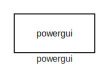
[diagram: root canvas - part 1/4, top left region]
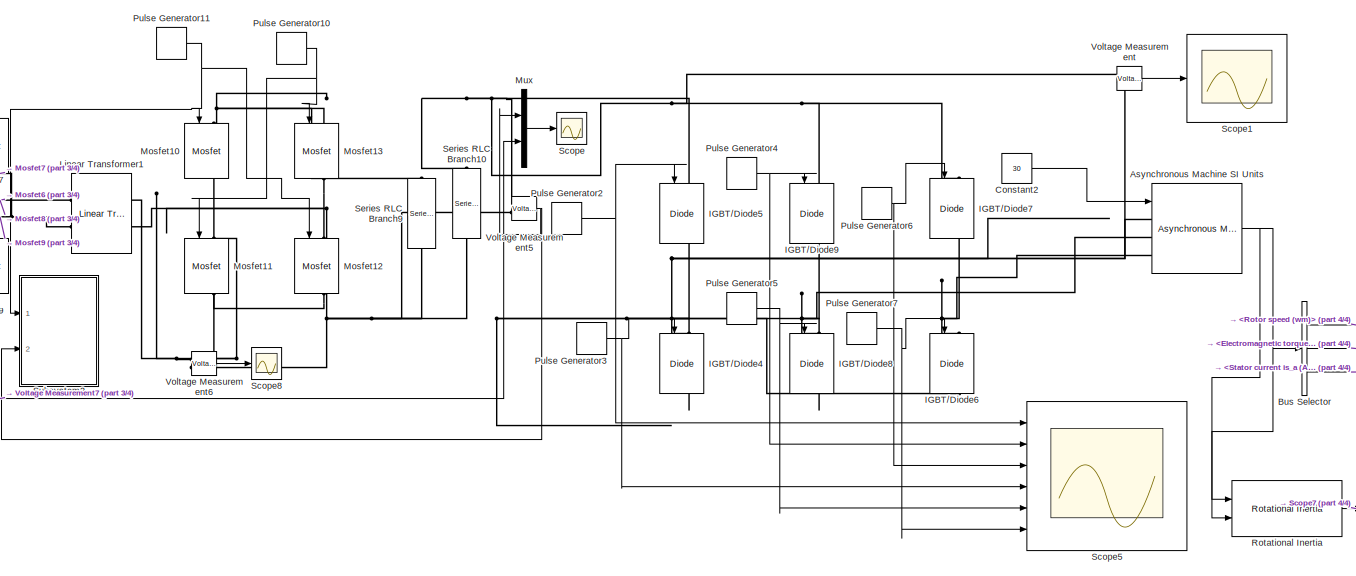
[diagram: root canvas - part 2/4, central region]
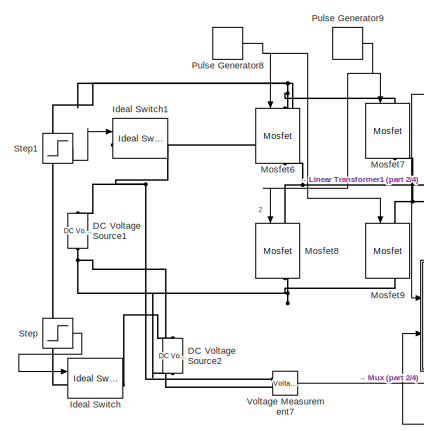
[diagram: root canvas - part 3/4, middle left region]
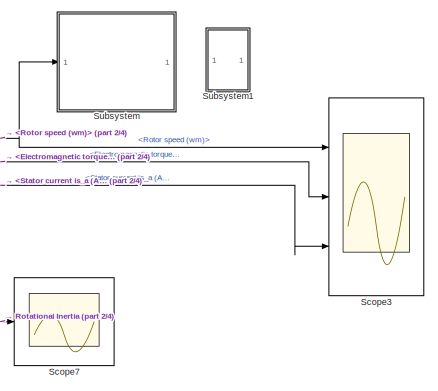
[diagram: root canvas - part 4/4, bottom right region]
MODEL slx_6dc73b4e41af
KIND model
CONFIG AbsTol = auto
CONFIG EnableMultiTasking = off
CONFIG FixedStep = auto
CONFIG MaxStep = auto
CONFIG MinStep = auto
CONFIG RelTol = 1e-3
CONFIG SampleTimeConstraint = Unconstrained
CONFIG Solver = VariableStepAuto
CONFIG SolverName = VariableStepAuto
CONFIG StartTime = 0.0
CONFIG StopTime = 10.0
BLOCK [Reference] Asynchronous Machine SI Units  REF=powerlib/Machines/Asynchronous Machine
SI Units
  Ports = [1, 1, 0, 0, 0, 3]
  SourceBlock = powerlib/Machines/Asynchronous Machine\nSI Units
  SourceProductBaseCode = PS
  SourceProductName = Simscape Electrical
  SourceType = Asynchronous Machine
BLOCK [BusSelector] Bus Selector
  OutputAsBus = off
  OutputSignals = Mechanical.Rotor speed (wm),Mechanical.Electromagnetic torque Te (N*m),Stator measurements.Stator current is_a (A)
  Ports = [1, 3]
BLOCK [Constant] Constant2
  Value = 30
BLOCK [Reference] DC Voltage Source1  REF=powerlib/Electrical
Sources/DC Voltage Source
  Ports = [0, 0, 0, 0, 0, 1, 1]
  SourceBlock = powerlib/Electrical\nSources/DC Voltage Source
  SourceProductBaseCode = PS
  SourceProductName = Simscape Electrical
  SourceType = DC Voltage Source
BLOCK [Reference] DC Voltage Source2  REF=powerlib/Electrical
Sources/DC Voltage Source
  Ports = [0, 0, 0, 0, 0, 1, 1]
  SourceBlock = powerlib/Electrical\nSources/DC Voltage Source
  SourceProductBaseCode = PS
  SourceProductName = Simscape Electrical
  SourceType = DC Voltage Source
BLOCK [Reference] IGBT//Diode4  REF=powerlib/Power
Electronics/IGBT//Diode
  Ports = [1, 1, 0, 0, 0, 1, 1]
  SourceBlock = powerlib/Power\nElectronics/IGBT//Diode
  SourceProductBaseCode = PS
  SourceProductName = Simscape Electrical
  SourceType = IGBT/Diode
BLOCK [Reference] IGBT//Diode5  REF=powerlib/Power
Electronics/IGBT//Diode
  Ports = [1, 1, 0, 0, 0, 1, 1]
  SourceBlock = powerlib/Power\nElectronics/IGBT//Diode
  SourceProductBaseCode = PS
  SourceProductName = Simscape Electrical
  SourceType = IGBT/Diode
BLOCK [Reference] IGBT//Diode6  REF=powerlib/Power
Electronics/IGBT//Diode
  Ports = [1, 1, 0, 0, 0, 1, 1]
  SourceBlock = powerlib/Power\nElectronics/IGBT//Diode
  SourceProductBaseCode = PS
  SourceProductName = Simscape Electrical
  SourceType = IGBT/Diode
BLOCK [Reference] IGBT//Diode7  REF=powerlib/Power
Electronics/IGBT//Diode
  Ports = [1, 1, 0, 0, 0, 1, 1]
  SourceBlock = powerlib/Power\nElectronics/IGBT//Diode
  SourceProductBaseCode = PS
  SourceProductName = Simscape Electrical
  SourceType = IGBT/Diode
BLOCK [Reference] IGBT//Diode8  REF=powerlib/Power
Electronics/IGBT//Diode
  Ports = [1, 1, 0, 0, 0, 1, 1]
  SourceBlock = powerlib/Power\nElectronics/IGBT//Diode
  SourceProductBaseCode = PS
  SourceProductName = Simscape Electrical
  SourceType = IGBT/Diode
BLOCK [Reference] IGBT//Diode9  REF=powerlib/Power
Electronics/IGBT//Diode
  Ports = [1, 1, 0, 0, 0, 1, 1]
  SourceBlock = powerlib/Power\nElectronics/IGBT//Diode
  SourceProductBaseCode = PS
  SourceProductName = Simscape Electrical
  SourceType = IGBT/Diode
BLOCK [Reference] Ideal Switch  REF=powerlib/Power
Electronics/Ideal Switch
  Ports = [1, 1, 0, 0, 0, 1, 1]
  SourceBlock = powerlib/Power\nElectronics/Ideal Switch
  SourceProductBaseCode = PS
  SourceProductName = Simscape Electrical
  SourceType = Ideal Switch
BLOCK [Reference] Ideal Switch1  REF=powerlib/Power
Electronics/Ideal Switch
  Ports = [1, 1, 0, 0, 0, 1, 1]
  SourceBlock = powerlib/Power\nElectronics/Ideal Switch
  SourceProductBaseCode = PS
  SourceProductName = Simscape Electrical
  SourceType = Ideal Switch
BLOCK [Reference] Linear Transformer1  REF=powerlib/Elements/Linear Transformer
  Ports = [0, 0, 0, 0, 0, 2, 2]
  SourceBlock = powerlib/Elements/Linear Transformer
  SourceProductBaseCode = PS
  SourceProductName = Simscape Electrical
  SourceType = Linear Transformer
BLOCK [Reference] Mosfet10  REF=powerlib/Power
Electronics/Mosfet
  Ports = [1, 1, 0, 0, 0, 1, 1]
  SourceBlock = powerlib/Power\nElectronics/Mosfet
  SourceProductBaseCode = PS
  SourceProductName = Simscape Electrical
  SourceType = Mosfet
BLOCK [Reference] Mosfet11  REF=powerlib/Power
Electronics/Mosfet
  Ports = [1, 1, 0, 0, 0, 1, 1]
  SourceBlock = powerlib/Power\nElectronics/Mosfet
  SourceProductBaseCode = PS
  SourceProductName = Simscape Electrical
  SourceType = Mosfet
BLOCK [Reference] Mosfet12  REF=powerlib/Power
Electronics/Mosfet
  Ports = [1, 1, 0, 0, 0, 1, 1]
  SourceBlock = powerlib/Power\nElectronics/Mosfet
  SourceProductBaseCode = PS
  SourceProductName = Simscape Electrical
  SourceType = Mosfet
BLOCK [Reference] Mosfet13  REF=powerlib/Power
Electronics/Mosfet
  Ports = [1, 1, 0, 0, 0, 1, 1]
  SourceBlock = powerlib/Power\nElectronics/Mosfet
  SourceProductBaseCode = PS
  SourceProductName = Simscape Electrical
  SourceType = Mosfet
BLOCK [Reference] Mosfet6  REF=powerlib/Power
Electronics/Mosfet
  Ports = [1, 1, 0, 0, 0, 1, 1]
  SourceBlock = powerlib/Power\nElectronics/Mosfet
  SourceProductBaseCode = PS
  SourceProductName = Simscape Electrical
  SourceType = Mosfet
BLOCK [Reference] Mosfet7  REF=powerlib/Power
Electronics/Mosfet
  Ports = [1, 1, 0, 0, 0, 1, 1]
  SourceBlock = powerlib/Power\nElectronics/Mosfet
  SourceProductBaseCode = PS
  SourceProductName = Simscape Electrical
  SourceType = Mosfet
BLOCK [Reference] Mosfet8  REF=powerlib/Power
Electronics/Mosfet
  Ports = [1, 1, 0, 0, 0, 1, 1]
  SourceBlock = powerlib/Power\nElectronics/Mosfet
  SourceProductBaseCode = PS
  SourceProductName = Simscape Electrical
  SourceType = Mosfet
BLOCK [Reference] Mosfet9  REF=powerlib/Power
Electronics/Mosfet
  Ports = [1, 1, 0, 0, 0, 1, 1]
  SourceBlock = powerlib/Power\nElectronics/Mosfet
  SourceProductBaseCode = PS
  SourceProductName = Simscape Electrical
  SourceType = Mosfet
BLOCK [Mux] Mux
  DisplayOption = bar
  Inputs = 2
  Ports = [2, 1]
BLOCK [DiscretePulseGenerator] Pulse Generator10
  Amplitude = 5
  Period = 50e-6
  PhaseDelay = 25e-6
  Ports = [0, 1]
  PulseType = Time based
  PulseWidth = 50
BLOCK [DiscretePulseGenerator] Pulse Generator11
  Amplitude = 5
  Period = 50e-6
  Ports = [0, 1]
  PulseType = Time based
  PulseWidth = 50
BLOCK [DiscretePulseGenerator] Pulse Generator2
  Period = .02
  Ports = [0, 1]
  PulseType = Time based
  PulseWidth = 33
BLOCK [DiscretePulseGenerator] Pulse Generator3
  Period = .02
  PhaseDelay = .01
  Ports = [0, 1]
  PulseType = Time based
  PulseWidth = 33
BLOCK [DiscretePulseGenerator] Pulse Generator4
  Period = .02
  PhaseDelay = .0066
  Ports = [0, 1]
  PulseType = Time based
  PulseWidth = 33
BLOCK [DiscretePulseGenerator] Pulse Generator5
  Period = .02
  PhaseDelay = .0166
  Ports = [0, 1]
  PulseType = Time based
  PulseWidth = 33
BLOCK [DiscretePulseGenerator] Pulse Generator6
  Period = .02
  PhaseDelay = .0133
  Ports = [0, 1]
  PulseType = Time based
  PulseWidth = 33
BLOCK [DiscretePulseGenerator] Pulse Generator7
  Period = .02
  PhaseDelay = .0033
  Ports = [0, 1]
  PulseType = Time based
  PulseWidth = 33
BLOCK [DiscretePulseGenerator] Pulse Generator8
  Amplitude = 5
  Period = 50e-6
  Ports = [0, 1]
  PulseType = Time based
  PulseWidth = 50
BLOCK [DiscretePulseGenerator] Pulse Generator9
  Amplitude = 5
  Period = 50e-6
  PhaseDelay = 25e-6
  Ports = [0, 1]
  PulseType = Time based
  PulseWidth = 50
BLOCK [Reference] Rotational Inertia  REF=autolibcoupling/Rotational Inertia
  Ports = [2, 1]
  SourceBlock = autolibcoupling/Rotational Inertia
  SourceProductBaseCode = PW
  SourceProductName = Powertrain Blockset
  SourceType = Rotational Inertia
BLOCK [Scope] Scope
  Floating = off
  NumInputPorts = 1
  Ports = [1]
  ScopeSpecificationString = Simulink.scopes.TimeScopeBlockCfg('CurrentConfiguration', extmgr.ConfigurationSet(extmgr.Configuration('Core','General UI',true,'FigureColor',[1 1 1]),extmgr.Configuration('Core','Source UI',true),extmgr.Configuration('Sources','WiredSimulink',true,'DataLoggingSaveFormat','StructureWithTime','DataLoggingDecimation','20','DataLoggingDecimateData',true,'DataLoggingVariableName','ScopeData1'),extmgr....<+1840ch>
BLOCK [Scope] Scope1
  Floating = off
  NumInputPorts = 1
  Ports = [1]
  ScopeSpecificationString = Simulink.scopes.TimeScopeBlockCfg('CurrentConfiguration', extmgr.ConfigurationSet(extmgr.Configuration('Core','General UI',true),extmgr.Configuration('Core','Source UI',true),extmgr.Configuration('Sources','WiredSimulink',true,'DataLoggingVariableName','ScopeData6'),extmgr.Configuration('Visuals','Time Domain',true,'TimeAxisLabels','All','SerializedDisplays',{struct('MinYLimReal','-13.76083','MaxY...<+3309ch>
BLOCK [Scope] Scope3
  Floating = off
  NumInputPorts = 3
  Ports = [3]
  ScopeSpecificationString = Simulink.scopes.TimeScopeBlockCfg('CurrentConfiguration', extmgr.ConfigurationSet(extmgr.Configuration('Core','General UI',true),extmgr.Configuration('Core','Source UI',true),extmgr.Configuration('Sources','WiredSimulink',true,'DataLoggingVariableName','ScopeData2'),extmgr.Configuration('Visuals','Time Domain',true,'TimeAxisLabels','All','SerializedDisplays',{struct('MinYLimReal','-3915.63561','Ma...<+2863ch>
BLOCK [Scope] Scope5
  Floating = off
  NumInputPorts = 6
  Ports = [6]
  ScopeSpecificationString = Simulink.scopes.TimeScopeBlockCfg('CurrentConfiguration', extmgr.ConfigurationSet(extmgr.Configuration('Core','General UI',true),extmgr.Configuration('Core','Source UI',true),extmgr.Configuration('Sources','WiredSimulink',true,'DataLoggingVariableName','ScopeData3'),extmgr.Configuration('Visuals','Time Domain',true,'TimeAxisLabels','All','SerializedDisplays',{struct('MinYLimReal','-0.125','MaxYLim...<+4921ch>
BLOCK [Scope] Scope7
  Floating = off
  NumInputPorts = 1
  Ports = [1]
  ScopeSpecificationString = Simulink.scopes.TimeScopeBlockCfg('CurrentConfiguration', extmgr.ConfigurationSet(extmgr.Configuration('Core','General UI',true),extmgr.Configuration('Core','Source UI',true),extmgr.Configuration('Sources','WiredSimulink',true,'DataLoggingVariableName','ScopeData4'),extmgr.Configuration('Visuals','Time Domain',true,'TimeAxisLabels','All','SerializedDisplays',{struct('MinYLimReal','-135617.67705','...<+3306ch>
BLOCK [Scope] Scope8
  Floating = off
  NumInputPorts = 1
  Ports = [1]
  ScopeSpecificationString = Simulink.scopes.TimeScopeBlockCfg('CurrentConfiguration', extmgr.ConfigurationSet(extmgr.Configuration('Core','General UI',true),extmgr.Configuration('Core','Source UI',true),extmgr.Configuration('Sources','WiredSimulink',true,'DataLoggingVariableName','ScopeData5','DataLoggingSaveFormat','StructureWithTime','DataLoggingDecimation','20','DataLoggingDecimateData',true),extmgr.Configuration('Visuals...<+1609ch>
BLOCK [Reference] Series RLC Branch10  REF=powerlib/Elements/Series RLC Branch
  Ports = [0, 0, 0, 0, 0, 1, 1]
  SourceBlock = powerlib/Elements/Series RLC Branch
  SourceProductBaseCode = PS
  SourceProductName = Simscape Electrical
  SourceType = Series RLC Branch
BLOCK [Reference] Series RLC Branch9  REF=powerlib/Elements/Series RLC Branch
  Ports = [0, 0, 0, 0, 0, 1, 1]
  SourceBlock = powerlib/Elements/Series RLC Branch
  SourceProductBaseCode = PS
  SourceProductName = Simscape Electrical
  SourceType = Series RLC Branch
BLOCK [Step] Step
  SampleTime = 0
  Time = 0.05
BLOCK [Step] Step1
  After = 0
  Before = 1
  SampleTime = 0
  Time = 0.05
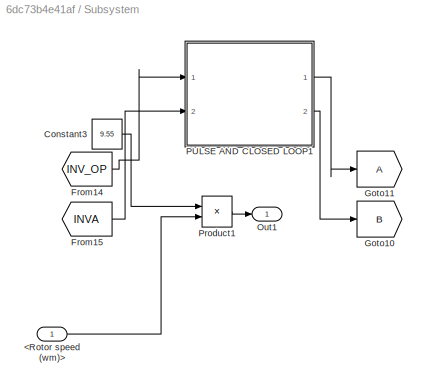
BLOCK [SubSystem] Subsystem
  Ports = [1, 1]
  RequestExecContextInheritance = off
BLOCK [Inport] Subsystem/<Rotor speed (wm)>
  IconDisplay = Port number
BLOCK [Constant] Subsystem/Constant3
  Value = 9.55
BLOCK [From] Subsystem/From14
  GotoTag = INV_OP
BLOCK [From] Subsystem/From15
  GotoTag = INVA
BLOCK [Goto] Subsystem/Goto10
  GotoTag = B
BLOCK [Goto] Subsystem/Goto11
BLOCK [Outport] Subsystem/Out1
  IconDisplay = Port number
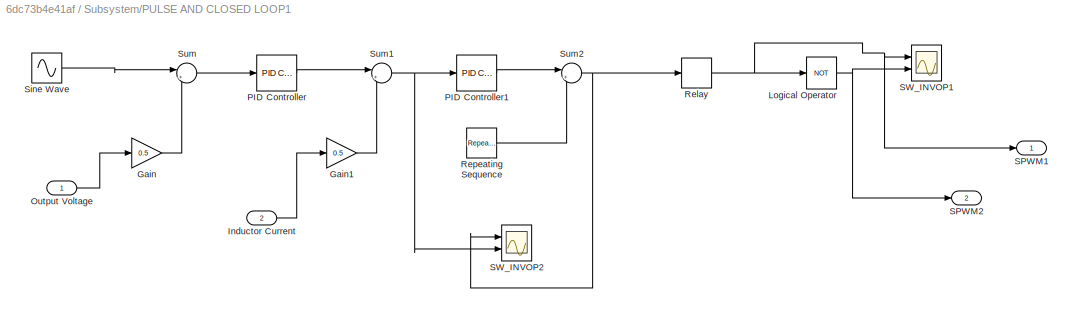
BLOCK [SubSystem] Subsystem/PULSE AND CLOSED LOOP1
  Ports = [2, 2]
  RequestExecContextInheritance = off
BLOCK [Gain] Subsystem/PULSE AND CLOSED LOOP1/Gain
  Gain = 0.5
  OutDataTypeStr = Inherit: Inherit via internal rule
  ParamDataTypeStr = Inherit: Inherit via internal rule
  SaturateOnIntegerOverflow = off
BLOCK [Gain] Subsystem/PULSE AND CLOSED LOOP1/Gain1
  Gain = 0.5
  OutDataTypeStr = Inherit: Inherit via internal rule
  ParamDataTypeStr = Inherit: Inherit via internal rule
  SaturateOnIntegerOverflow = off
BLOCK [Inport] Subsystem/PULSE AND CLOSED LOOP1/Inductor Current
  IconDisplay = Port number
  Port = 2
BLOCK [Logic] Subsystem/PULSE AND CLOSED LOOP1/Logical Operator
  AllPortsSameDT = off
  Operator = NOT
  OutDataTypeStr = boolean
  Ports = [1, 1]
BLOCK [Inport] Subsystem/PULSE AND CLOSED LOOP1/Output Voltage 
  IconDisplay = Port number
BLOCK [Reference] Subsystem/PULSE AND CLOSED LOOP1/PID Controller  REF=simulink/Continuous/PID Controller
  Ports = [1, 1]
  SourceBlock = simulink/Continuous/PID Controller
  SourceProductBaseCode = SL
  SourceProductName = Simulink
  SourceType = PID 1dof
BLOCK [Reference] Subsystem/PULSE AND CLOSED LOOP1/PID Controller1  REF=simulink/Continuous/PID Controller
  Ports = [1, 1]
  SourceBlock = simulink/Continuous/PID Controller
  SourceProductBaseCode = SL
  SourceProductName = Simulink
  SourceType = PID 1dof
BLOCK [Relay] Subsystem/PULSE AND CLOSED LOOP1/Relay
  InputProcessing = Elements as channels (sample based)
BLOCK [Reference] Subsystem/PULSE AND CLOSED LOOP1/Repeating Sequence  REF=simulink/Sources/Repeating
Sequence
  Ports = [0, 1]
  SourceBlock = simulink/Sources/Repeating\nSequence
  SourceProductBaseCode = SL
  SourceProductName = Simulink
  SourceType = Repeating table
BLOCK [Outport] Subsystem/PULSE AND CLOSED LOOP1/SPWM1
  IconDisplay = Port number
BLOCK [Outport] Subsystem/PULSE AND CLOSED LOOP1/SPWM2
  IconDisplay = Port number
  Port = 2
BLOCK [Scope] Subsystem/PULSE AND CLOSED LOOP1/SW_INVOP1
  Floating = off
  NumInputPorts = 2
  Ports = [2]
  ScopeSpecificationString = Simulink.scopes.TimeScopeBlockCfg('CurrentConfiguration', extmgr.ConfigurationSet(extmgr.Configuration('Core','General UI',true),extmgr.Configuration('Core','Source UI',true),extmgr.Configuration('Sources','WiredSimulink',true,'DataLoggingVariableName','ScopeData5','DataLoggingSaveFormat','Array','DataLoggingDecimation','1','DataLoggingDecimateData',true),extmgr.Configuration('Visuals','Time Domai...<+2302ch>
BLOCK [Scope] Subsystem/PULSE AND CLOSED LOOP1/SW_INVOP2
  Floating = off
  NumInputPorts = 2
  Ports = [2]
  ScopeSpecificationString = Simulink.scopes.TimeScopeBlockCfg('CurrentConfiguration', extmgr.ConfigurationSet(extmgr.Configuration('Core','General UI',true),extmgr.Configuration('Core','Source UI',true),extmgr.Configuration('Sources','WiredSimulink',true,'DataLoggingSaveFormat','Array','DataLoggingDecimation','1','DataLoggingDecimateData',true),extmgr.Configuration('Visuals','Time Domain',true,'SerializedDisplays',{struct('M...<+2308ch>
BLOCK [Sin] Subsystem/PULSE AND CLOSED LOOP1/Sine Wave
  Amplitude = 130
  Frequency = 2*pi*50
  Ports = [0, 1]
  SampleTime = 0
BLOCK [Sum] Subsystem/PULSE AND CLOSED LOOP1/Sum
  IconShape = round
  InputSameDT = off
  Inputs = |+-
  OutDataTypeStr = Inherit: Inherit via internal rule
  Ports = [2, 1]
  SaturateOnIntegerOverflow = off
BLOCK [Sum] Subsystem/PULSE AND CLOSED LOOP1/Sum1
  IconShape = round
  InputSameDT = off
  Inputs = |+-
  OutDataTypeStr = Inherit: Inherit via internal rule
  Ports = [2, 1]
  SaturateOnIntegerOverflow = off
BLOCK [Sum] Subsystem/PULSE AND CLOSED LOOP1/Sum2
  IconShape = round
  InputSameDT = off
  Inputs = |+-
  OutDataTypeStr = Inherit: Inherit via internal rule
  Ports = [2, 1]
  SaturateOnIntegerOverflow = off
BLOCK [Product] Subsystem/Product1
  InputSameDT = off
  OutDataTypeStr = Inherit: Inherit via internal rule
  Ports = [2, 1]
  RndMeth = Floor
  SaturateOnIntegerOverflow = off
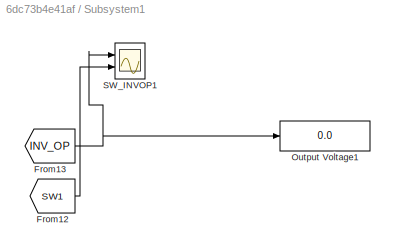
BLOCK [SubSystem] Subsystem1
  Ports = []
  RequestExecContextInheritance = off
BLOCK [From] Subsystem1/From12
  GotoTag = SW1
BLOCK [From] Subsystem1/From13
  GotoTag = INV_OP
BLOCK [Display] Subsystem1/Output Voltage1
  Decimation = 1
  Ports = [1]
BLOCK [Scope] Subsystem1/SW_INVOP1
  Floating = off
  NumInputPorts = 2
  Ports = [2]
  ScopeSpecificationString = Simulink.scopes.TimeScopeBlockCfg('CurrentConfiguration', extmgr.ConfigurationSet(extmgr.Configuration('Core','General UI',true),extmgr.Configuration('Core','Source UI',true),extmgr.Configuration('Sources','WiredSimulink',true,'DataLoggingVariableName','ScopeData6','DataLoggingSaveFormat','Array','DataLoggingDecimation','1','DataLoggingDecimateData',true),extmgr.Configuration('Visuals','Time Domai...<+2302ch>
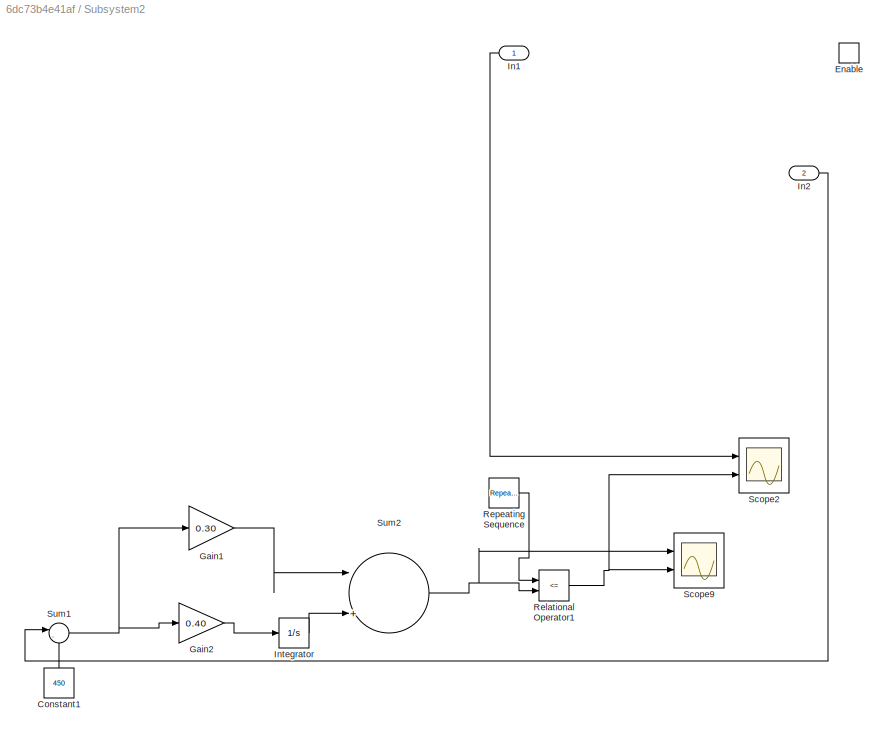
BLOCK [SubSystem] Subsystem2
  Ports = [2, 0, 1]
  RequestExecContextInheritance = off
BLOCK [Constant] Subsystem2/Constant1
  Value = 450
BLOCK [EnablePort] Subsystem2/Enable
  Ports = []
BLOCK [Gain] Subsystem2/Gain1
  Gain = 0.30
  OutDataTypeStr = Inherit: Inherit via internal rule
  ParamDataTypeStr = Inherit: Inherit via internal rule
  SaturateOnIntegerOverflow = off
BLOCK [Gain] Subsystem2/Gain2
  Gain = 0.40
  OutDataTypeStr = Inherit: Inherit via internal rule
  ParamDataTypeStr = Inherit: Inherit via internal rule
  SaturateOnIntegerOverflow = off
BLOCK [Inport] Subsystem2/In1
  IconDisplay = Port number
BLOCK [Inport] Subsystem2/In2
  IconDisplay = Port number
  Port = 2
BLOCK [Integrator] Subsystem2/Integrator
  Ports = [1, 1]
BLOCK [RelationalOperator] Subsystem2/Relational Operator1
  InputSameDT = off
  Operator = <=
  OutDataTypeStr = boolean
  Ports = [2, 1]
BLOCK [Reference] Subsystem2/Repeating Sequence  REF=simulink/Sources/Repeating
Sequence
  Ports = [0, 1]
  SourceBlock = simulink/Sources/Repeating\nSequence
  SourceProductBaseCode = SL
  SourceProductName = Simulink
  SourceType = Repeating table
BLOCK [Scope] Subsystem2/Scope2
  Floating = off
  NumInputPorts = 2
  Ports = [2]
  ScopeSpecificationString = Simulink.scopes.TimeScopeBlockCfg('CurrentConfiguration', extmgr.ConfigurationSet(extmgr.Configuration('Core','General UI',true),extmgr.Configuration('Core','Source UI',true),extmgr.Configuration('Sources','WiredSimulink',true,'DataLoggingVariableName','ScopeData3','DataLoggingSaveFormat','StructureWithTime','DataLoggingDecimation','1','DataLoggingDecimateData',true),extmgr.Configuration('Visuals'...<+2348ch>
BLOCK [Scope] Subsystem2/Scope9
  Floating = off
  NumInputPorts = 2
  Ports = [2]
  ScopeSpecificationString = Simulink.scopes.TimeScopeBlockCfg('CurrentConfiguration', extmgr.ConfigurationSet(extmgr.Configuration('Core','General UI',true),extmgr.Configuration('Core','Source UI',true),extmgr.Configuration('Sources','WiredSimulink',true,'DataLoggingVariableName','ScopeData2','DataLoggingSaveFormat','StructureWithTime','DataLoggingDecimation','1','DataLoggingDecimateData',true),extmgr.Configuration('Visuals'...<+2358ch>
BLOCK [Sum] Subsystem2/Sum1
  IconShape = round
  InputSameDT = off
  Inputs = |-+
  OutDataTypeStr = Inherit: Inherit via internal rule
  Ports = [2, 1]
  SaturateOnIntegerOverflow = off
BLOCK [Sum] Subsystem2/Sum2
  InputSameDT = off
  Inputs = |++
  OutDataTypeStr = Inherit: Inherit via internal rule
  Ports = [2, 1]
  SaturateOnIntegerOverflow = off
BLOCK [Reference] Voltage Measurement  REF=powerlib/Measurements/Voltage Measurement
  Ports = [0, 1, 0, 0, 0, 2]
  SourceBlock = powerlib/Measurements/Voltage Measurement
  SourceProductBaseCode = PS
  SourceProductName = Simscape Power Systems
  SourceType = Voltage Measurement
  UserDataPersistent = on
BLOCK [Reference] Voltage Measurement5  REF=powerlib/Measurements/Voltage Measurement
  Ports = [0, 1, 0, 0, 0, 2]
  SourceBlock = powerlib/Measurements/Voltage Measurement
  SourceProductBaseCode = PS
  SourceProductName = Simscape Electrical
  SourceType = Voltage Measurement
BLOCK [Reference] Voltage Measurement6  REF=powerlib/Measurements/Voltage Measurement
  Ports = [0, 1, 0, 0, 0, 2]
  SourceBlock = powerlib/Measurements/Voltage Measurement
  SourceProductBaseCode = PS
  SourceProductName = Simscape Electrical
  SourceType = Voltage Measurement
BLOCK [Reference] Voltage Measurement7  REF=powerlib/Measurements/Voltage Measurement
  Ports = [0, 1, 0, 0, 0, 2]
  SourceBlock = powerlib/Measurements/Voltage Measurement
  SourceProductBaseCode = PS
  SourceProductName = Simscape Electrical
  SourceType = Voltage Measurement
BLOCK [Reference] powergui  REF=powerlib/powergui
  Ports = []
  Priority = 1
  SourceBlock = powerlib/powergui
  SourceProductBaseCode = PS
  SourceProductName = Simscape Power Systems
  SourceType = PSB option menu block
ANNOTATION (root): z
NET Asynchronous Machine SI Units:1 -> Bus Selector:1, Rotational Inertia:1, Rotational Inertia:2
NET Bus Selector:1 -> Scope3:1, Subsystem:1
LINE Bus Selector:2 -> Scope3:2
LINE Bus Selector:3 -> Scope3:3
LINE Constant2:1 -> Asynchronous Machine SI Units:1
LINE Mux:1 -> Scope:1
NET Pulse Generator10:1 -> Mosfet11:1, Mosfet13:1
NET Pulse Generator11:1 -> Mosfet10:1, Mosfet12:1, Subsystem2:1
NET Pulse Generator2:1 -> IGBT//Diode5:1, Scope5:1
NET Pulse Generator3:1 -> IGBT//Diode4:1, Scope5:4
NET Pulse Generator4:1 -> IGBT//Diode9:1, Scope5:2
NET Pulse Generator5:1 -> IGBT//Diode8:1, Scope5:5
NET Pulse Generator6:1 -> IGBT//Diode7:1, Scope5:3
NET Pulse Generator7:1 -> IGBT//Diode6:1, Scope5:6
NET Pulse Generator8:1 -> Mosfet6:1, Mosfet9:1
NET Pulse Generator9:1 -> Mosfet7:1, Mosfet8:1
LINE Rotational Inertia:1 -> Scope7:1
LINE Step1:1 -> Ideal Switch1:1
LINE Step:1 -> Ideal Switch:1
LINE Subsystem/<Rotor speed (wm)>:1 -> Subsystem/Product1:2
LINE Subsystem/Constant3:1 -> Subsystem/Product1:1
LINE Subsystem/From14:1 -> Subsystem/PULSE AND CLOSED LOOP1:1
LINE Subsystem/From15:1 -> Subsystem/PULSE AND CLOSED LOOP1:2
LINE Subsystem/PULSE AND CLOSED LOOP1/Gain1:1 -> Subsystem/PULSE AND CLOSED LOOP1/Sum1:2
LINE Subsystem/PULSE AND CLOSED LOOP1/Gain:1 -> Subsystem/PULSE AND CLOSED LOOP1/Sum:2
LINE Subsystem/PULSE AND CLOSED LOOP1/Inductor Current:1 -> Subsystem/PULSE AND CLOSED LOOP1/Gain1:1
NET Subsystem/PULSE AND CLOSED LOOP1/Logical Operator:1 -> Subsystem/PULSE AND CLOSED LOOP1/SPWM2:1, Subsystem/PULSE AND CLOSED LOOP1/SW_INVOP1:2
LINE Subsystem/PULSE AND CLOSED LOOP1/Output Voltage :1 -> Subsystem/PULSE AND CLOSED LOOP1/Gain:1
LINE Subsystem/PULSE AND CLOSED LOOP1/PID Controller1:1 -> Subsystem/PULSE AND CLOSED LOOP1/Sum2:1
LINE Subsystem/PULSE AND CLOSED LOOP1/PID Controller:1 -> Subsystem/PULSE AND CLOSED LOOP1/Sum1:1
NET Subsystem/PULSE AND CLOSED LOOP1/Relay:1 -> Subsystem/PULSE AND CLOSED LOOP1/Logical Operator:1, Subsystem/PULSE AND CLOSED LOOP1/SPWM1:1, Subsystem/PULSE AND CLOSED LOOP1/SW_INVOP1:1
LINE Subsystem/PULSE AND CLOSED LOOP1/Repeating Sequence:1 -> Subsystem/PULSE AND CLOSED LOOP1/Sum2:2
LINE Subsystem/PULSE AND CLOSED LOOP1/Sine Wave:1 -> Subsystem/PULSE AND CLOSED LOOP1/Sum:1
NET Subsystem/PULSE AND CLOSED LOOP1/Sum1:1 -> Subsystem/PULSE AND CLOSED LOOP1/PID Controller1:1, Subsystem/PULSE AND CLOSED LOOP1/SW_INVOP2:2
NET Subsystem/PULSE AND CLOSED LOOP1/Sum2:1 -> Subsystem/PULSE AND CLOSED LOOP1/Relay:1, Subsystem/PULSE AND CLOSED LOOP1/SW_INVOP2:1
LINE Subsystem/PULSE AND CLOSED LOOP1/Sum:1 -> Subsystem/PULSE AND CLOSED LOOP1/PID Controller:1
LINE Subsystem/PULSE AND CLOSED LOOP1:1 -> Subsystem/Goto11:1
LINE Subsystem/PULSE AND CLOSED LOOP1:2 -> Subsystem/Goto10:1
LINE Subsystem/Product1:1 -> Subsystem/Out1:1
LINE Subsystem1/From12:1 -> Subsystem1/SW_INVOP1:2
NET Subsystem1/From13:1 -> Subsystem1/Output Voltage1:1, Subsystem1/SW_INVOP1:1
LINE Subsystem2/Constant1:1 -> Subsystem2/Sum1:2
LINE Subsystem2/Gain1:1 -> Subsystem2/Sum2:1
LINE Subsystem2/Gain2:1 -> Subsystem2/Integrator:1
LINE Subsystem2/In1:1 -> Subsystem2/Scope2:1
LINE Subsystem2/In2:1 -> Subsystem2/Sum1:1
LINE Subsystem2/Integrator:1 -> Subsystem2/Sum2:2
NET Subsystem2/Relational Operator1:1 -> Subsystem2/Scope2:2, Subsystem2/Scope9:2
LINE Subsystem2/Repeating Sequence:1 -> Subsystem2/Relational Operator1:1
NET Subsystem2/Sum1:1 -> Subsystem2/Gain1:1, Subsystem2/Gain2:1
NET Subsystem2/Sum2:1 -> Subsystem2/Relational Operator1:2, Subsystem2/Scope9:1
NET Voltage Measurement5:1 -> Mux:1, Subsystem2:2
LINE Voltage Measurement6:1 -> Scope8:1
LINE Voltage Measurement7:1 -> Mux:2
LINE Voltage Measurement:1 -> Scope1:1
PNET net1: Asynchronous Machine SI Units:LConn1 -- IGBT//Diode4:LConn1 -- IGBT//Diode5:RConn1 -- Voltage Measurement:LConn2
PNET net2: Asynchronous Machine SI Units:LConn2 -- IGBT//Diode8:LConn1 -- IGBT//Diode9:RConn1
PNET net3: Asynchronous Machine SI Units:LConn3 -- IGBT//Diode6:LConn1 -- IGBT//Diode7:RConn1
PNET net4: DC Voltage Source1:LConn1 -- DC Voltage Source2:LConn1 -- Mosfet8:RConn1 -- Mosfet9:RConn1 -- Voltage Measurement7:LConn2
PNET net5: DC Voltage Source1:RConn1 -- Ideal Switch1:RConn1 -- Voltage Measurement7:LConn1
PLINE DC Voltage Source2:RConn1 -- Ideal Switch:RConn1
PNET net6: IGBT//Diode4:RConn1 -- IGBT//Diode6:RConn1 -- IGBT//Diode8:RConn1 -- Mosfet11:RConn1 -- Mosfet12:RConn1 -- Series RLC Branch10:RConn1 -- Series RLC Branch9:RConn1 -- Voltage Measurement5:LConn2
PNET net7: IGBT//Diode5:LConn1 -- IGBT//Diode7:LConn1 -- IGBT//Diode9:LConn1 -- Mosfet10:LConn1 -- Mosfet13:LConn1 -- Series RLC Branch10:LConn1 -- Series RLC Branch9:LConn1 -- Voltage Measurement5:LConn1 -- Voltage Measurement:LConn1
PNET net8: Ideal Switch1:LConn1 -- Ideal Switch:LConn1 -- Mosfet6:LConn1 -- Mosfet7:LConn1
PNET net9: Linear Transformer1:LConn1 -- Mosfet6:RConn1 -- Mosfet8:LConn1
PNET net10: Linear Transformer1:LConn2 -- Mosfet7:RConn1 -- Mosfet9:LConn1
PNET net11: Linear Transformer1:RConn1 -- Mosfet10:RConn1 -- Mosfet11:LConn1 -- Voltage Measurement6:LConn1
PNET net12: Linear Transformer1:RConn2 -- Mosfet12:LConn1 -- Mosfet13:RConn1 -- Voltage Measurement6:LConn2
note: NET lines group one-source signal fan-out (src -> all destinations, sorted); 1:1 wires keep LINE; PNET lines group multi-terminal physical nets as a canonical sorted terminal list (undirected conserving connections); 2-terminal nets keep the pairwise PLINE form
